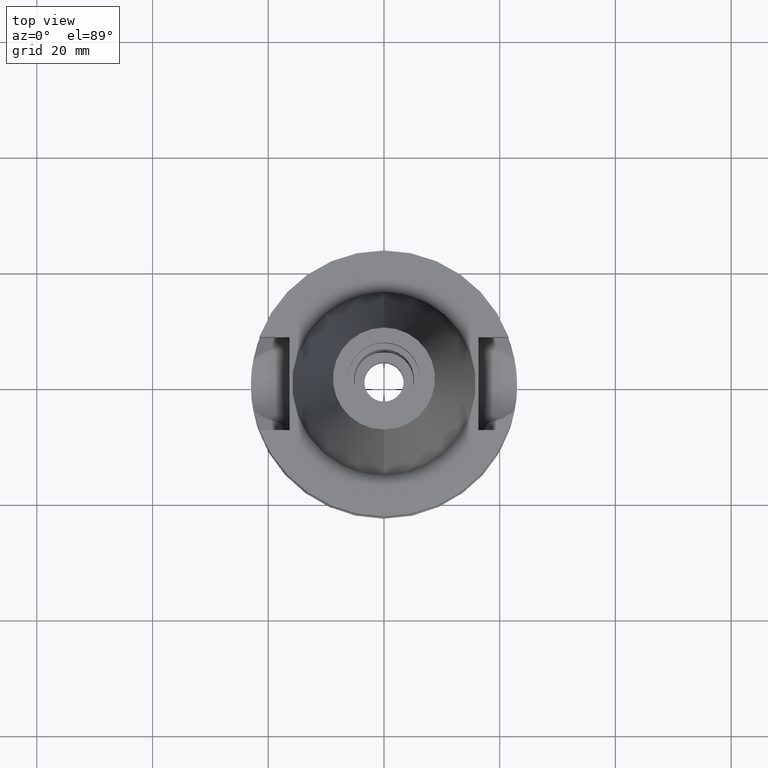
[diagram: clean part render]
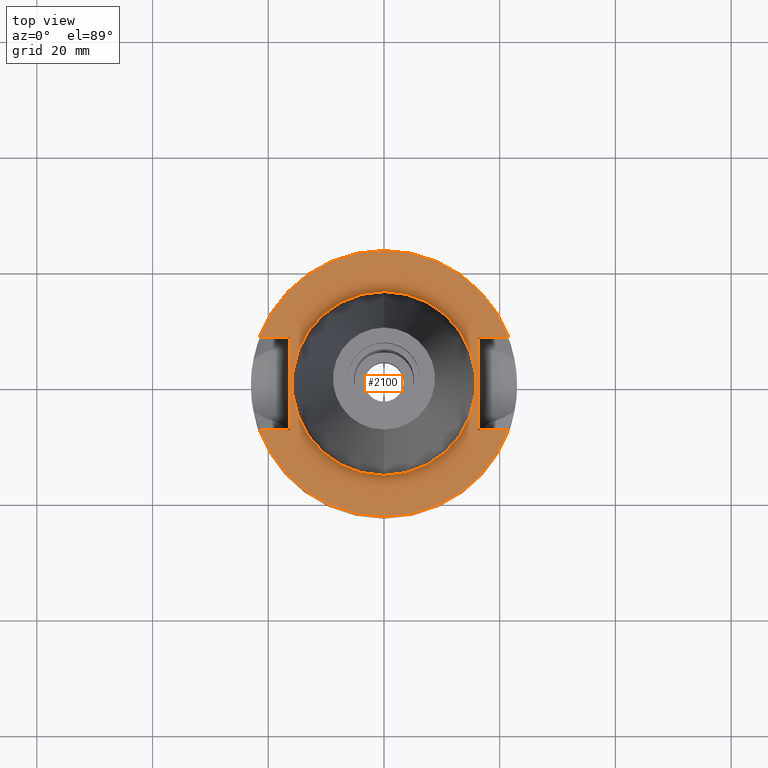
[diagram: same view with one face highlighted and labeled with its STEP entity id]
A machine part, top view. The second image highlights one B-rep face of the part: STEP entity #2100.
In plain terms, the highlighted planar face has unit normal (0, 0, -1).
Its self-contained STEP definition (entity closure, byte-faithful):
#94=DIRECTION('',(0.E0,1.E0,0.E0));
#95=VECTOR('',#94,1.61E1);
#96=CARTESIAN_POINT('',(-1.63E1,-8.05E0,-1.E0));
#97=LINE('',#96,#95);
#101=DIRECTION('',(-1.E0,9.347030801892E-14,0.E0));
#102=VECTOR('',#101,5.245243094473E0);
#103=CARTESIAN_POINT('',(-1.63E1,8.05E0,-1.E0));
#104=LINE('',#103,#102);
#108=CARTESIAN_POINT('',(0.E0,1.883751706448E-14,-1.E0));
#109=DIRECTION('',(0.E0,0.E0,-1.E0));
#110=DIRECTION('',(-9.367496997598E-1,3.5E-1,0.E0));
#111=AXIS2_PLACEMENT_3D('',#108,#109,#110);
#116=CARTESIAN_POINT('',(0.E0,1.883751706448E-14,-1.E0));
#117=DIRECTION('',(0.E0,0.E0,-1.E0));
#118=DIRECTION('',(0.E0,1.E0,0.E0));
#119=AXIS2_PLACEMENT_3D('',#116,#117,#118);
#124=DIRECTION('',(0.E0,-1.E0,0.E0));
#125=VECTOR('',#124,1.61E1);
#126=CARTESIAN_POINT('',(1.63E1,8.05E0,-1.E0));
#127=LINE('',#126,#125);
#131=DIRECTION('',(1.E0,-9.347030801892E-14,0.E0));
#132=VECTOR('',#131,5.245243094473E0);
#133=CARTESIAN_POINT('',(1.63E1,-8.05E0,-1.E0));
#134=LINE('',#133,#132);
#138=CARTESIAN_POINT('',(0.E0,1.883751706448E-14,-1.E0));
#139=DIRECTION('',(0.E0,0.E0,-1.E0));
#140=DIRECTION('',(9.367496997598E-1,-3.5E-1,0.E0));
#141=AXIS2_PLACEMENT_3D('',#138,#139,#140);
#146=CARTESIAN_POINT('',(0.E0,1.883751706448E-14,-1.E0));
#147=DIRECTION('',(0.E0,0.E0,-1.E0));
#148=DIRECTION('',(0.E0,-1.E0,0.E0));
#149=AXIS2_PLACEMENT_3D('',#146,#147,#148);
#154=CARTESIAN_POINT('',(0.E0,1.883751706448E-14,-9.999999999999E-1));
#155=DIRECTION('',(0.E0,0.E0,1.E0));
#156=DIRECTION('',(0.E0,-1.E0,0.E0));
#157=AXIS2_PLACEMENT_3D('',#154,#155,#156);
#162=CARTESIAN_POINT('',(0.E0,1.883751706448E-14,-9.999999999999E-1));
#163=DIRECTION('',(0.E0,0.E0,1.E0));
#164=DIRECTION('',(0.E0,1.E0,0.E0));
#165=AXIS2_PLACEMENT_3D('',#162,#163,#164);
#210=DIRECTION('',(-1.E0,-9.313164748262E-14,0.E0));
#211=VECTOR('',#210,5.245243094473E0);
#212=CARTESIAN_POINT('',(-1.63E1,-8.05E0,-1.E0));
#213=LINE('',#212,#211);
#333=DIRECTION('',(1.E0,9.380896855522E-14,0.E0));
#334=VECTOR('',#333,5.245243094473E0);
#335=CARTESIAN_POINT('',(1.63E1,8.05E0,-1.E0));
#336=LINE('',#335,#334);
#1937=CARTESIAN_POINT('',(-1.63E1,-8.05E0,-1.E0));
#1938=VERTEX_POINT('',#1937);
#1939=CARTESIAN_POINT('',(-2.154524309447E1,-8.05E0,-1.E0));
#1940=VERTEX_POINT('',#1939);
#1941=CARTESIAN_POINT('',(-1.63E1,8.05E0,-1.E0));
#1942=VERTEX_POINT('',#1941);
#1943=CARTESIAN_POINT('',(-2.154524309447E1,8.05E0,-1.E0));
#1944=VERTEX_POINT('',#1943);
#1945=CARTESIAN_POINT('',(0.E0,2.3E1,-1.E0));
#1946=CARTESIAN_POINT('',(2.154524309447E1,8.05E0,-1.E0));
#1947=VERTEX_POINT('',#1945);
#1948=VERTEX_POINT('',#1946);
#1949=CARTESIAN_POINT('',(1.63E1,8.05E0,-1.E0));
#1950=VERTEX_POINT('',#1949);
#1951=CARTESIAN_POINT('',(1.63E1,-8.05E0,-1.E0));
#1952=VERTEX_POINT('',#1951);
#1953=CARTESIAN_POINT('',(2.154524309447E1,-8.05E0,-1.E0));
#1954=VERTEX_POINT('',#1953);
#1955=CARTESIAN_POINT('',(0.E0,-2.3E1,-1.E0));
#1956=VERTEX_POINT('',#1955);
#1957=CARTESIAN_POINT('',(0.E0,-1.5875E1,-9.999999999999E-1));
#1958=CARTESIAN_POINT('',(0.E0,1.5875E1,-9.999999999999E-1));
#1959=VERTEX_POINT('',#1957);
#1960=VERTEX_POINT('',#1958);
#2069=CARTESIAN_POINT('',(0.E0,1.212400331156E-14,-1.E0));
#2070=DIRECTION('',(0.E0,0.E0,-1.E0));
#2071=DIRECTION('',(0.E0,-1.E0,0.E0));
#2072=AXIS2_PLACEMENT_3D('',#2069,#2070,#2071);
#2073=PLANE('',#2072);
#2075=ORIENTED_EDGE('',*,*,#2074,.T.);
#2077=ORIENTED_EDGE('',*,*,#2076,.T.);
#2079=ORIENTED_EDGE('',*,*,#2078,.T.);
#2081=ORIENTED_EDGE('',*,*,#2080,.T.);
#2083=ORIENTED_EDGE('',*,*,#2082,.F.);
#2085=ORIENTED_EDGE('',*,*,#2084,.T.);
#2087=ORIENTED_EDGE('',*,*,#2086,.T.);
#2089=ORIENTED_EDGE('',*,*,#2088,.T.);
#2091=ORIENTED_EDGE('',*,*,#2090,.T.);
#2093=ORIENTED_EDGE('',*,*,#2092,.F.);
#2094=EDGE_LOOP('',(#2075,#2077,#2079,#2081,#2083,#2085,#2087,#2089,#2091,
#2093));
#2095=FACE_OUTER_BOUND('',#2094,.F.);
#2096=ORIENTED_EDGE('',*,*,#2048,.T.);
#2097=ORIENTED_EDGE('',*,*,#2064,.T.);
#2098=EDGE_LOOP('',(#2096,#2097));
#2099=FACE_BOUND('',#2098,.F.);
#112=CIRCLE('',#111,2.3E1);
#120=CIRCLE('',#119,2.3E1);
#142=CIRCLE('',#141,2.3E1);
#150=CIRCLE('',#149,2.3E1);
#158=CIRCLE('',#157,1.5875E1);
#166=CIRCLE('',#165,1.5875E1);
#2048=EDGE_CURVE('',#1959,#1960,#158,.T.);
#2064=EDGE_CURVE('',#1960,#1959,#166,.T.);
#2074=EDGE_CURVE('',#1938,#1942,#97,.T.);
#2076=EDGE_CURVE('',#1942,#1944,#104,.T.);
#2078=EDGE_CURVE('',#1944,#1947,#112,.T.);
#2080=EDGE_CURVE('',#1947,#1948,#120,.T.);
#2082=EDGE_CURVE('',#1950,#1948,#336,.T.);
#2084=EDGE_CURVE('',#1950,#1952,#127,.T.);
#2086=EDGE_CURVE('',#1952,#1954,#134,.T.);
#2088=EDGE_CURVE('',#1954,#1956,#142,.T.);
#2090=EDGE_CURVE('',#1956,#1940,#150,.T.);
#2092=EDGE_CURVE('',#1938,#1940,#213,.T.);
#2100=ADVANCED_FACE('',(#2095,#2099),#2073,.F.);